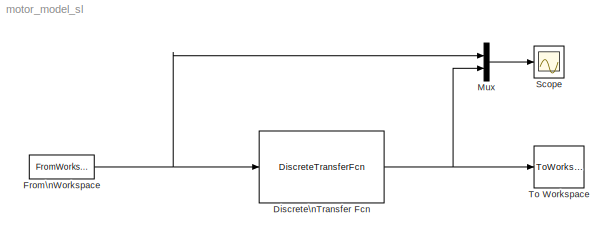
MODEL motor_model_sl
KIND model
BLOCK [DiscreteTransferFcn] Discrete\nTransfer Fcn
  Denominator = [1 -1.605 0.605]
  InputPortMap = u0
  Numerator = [0.01 0.004]
  Ports = [1, 1]
  SID = 2
BLOCK [FromWorkspace] From\nWorkspace
  SID = 5
  SampleTime = T
  VariableName = uk
  ZeroCross = on
BLOCK [Mux] Mux
  DisplayOption = bar
  Inputs = 2
  Ports = [2, 1]
  SID = 6
BLOCK [Scope] Scope
  Floating = off
  NumInputPorts = 1
  Ports = [1]
  SID = 3
  ScopeSpecificationString = Simulink.scopes.TimeScopeBlockCfg('CurrentConfiguration', extmgr.ConfigurationSet(extmgr.Configuration('Core','General UI',true,'FigureColor',[1 1 1]),extmgr.Configuration('Core','Source UI',true),extmgr.Configuration('Sources','WiredSimulink',true),extmgr.Configuration('Visuals','Time Domain',true,'SerializedDisplays',{struct('MinYLimReal','-1.63038','MaxYLimReal','14.67342','YLabelReal','','MinY...<+1596ch>
BLOCK [ToWorkspace] To Workspace
  MaxDataPoints = inf
  Ports = [1]
  SID = 4
  SampleTime = T
  Save2DSignal = 2-D array (concatenate along first dimension)
  VariableName = yk
NET Discrete\nTransfer Fcn:1 -> Mux:2, To Workspace:1
NET From\nWorkspace:1 -> Discrete\nTransfer Fcn:1, Mux:1
LINE Mux:1 -> Scope:1
note: NET lines group one-source signal fan-out (src -> all destinations, sorted); 1:1 wires keep LINE
